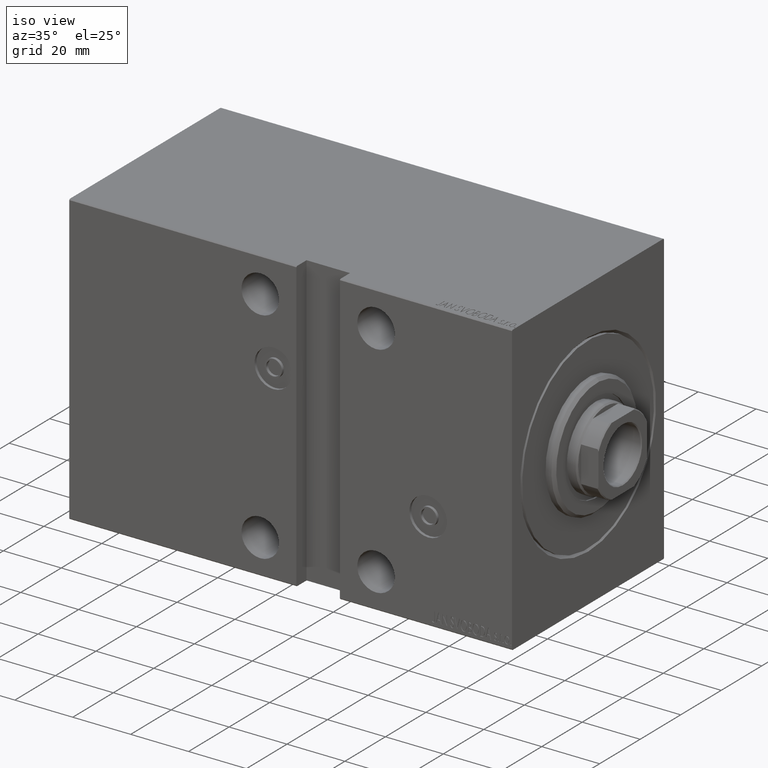
[diagram: clean part render]
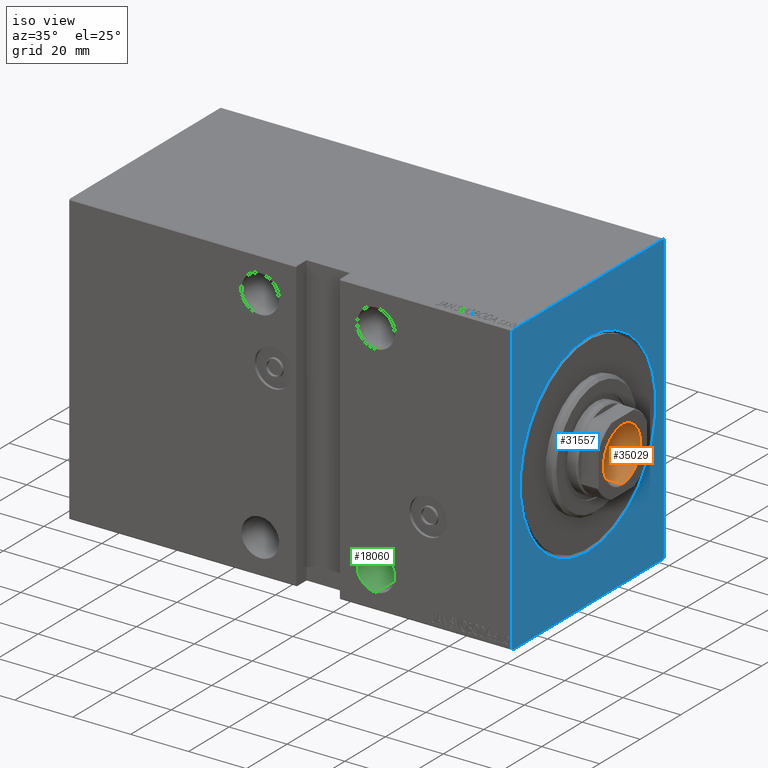
[diagram: same view with three faces highlighted in distinct colors, each labeled with its STEP entity id]
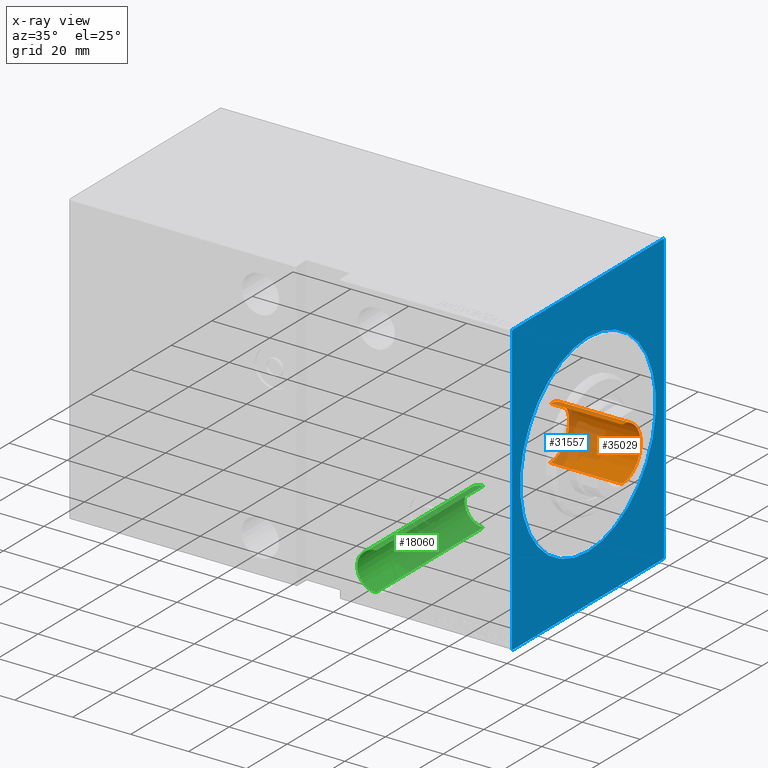
[diagram: x-ray of the same camera — body ghosted, the three highlighted faces saturated]
A machine part, iso view with three faces highlighted in distinct colors.
The next image is the same camera in x-ray (body ghosted, the three faces saturated) — at least one of them is partly hidden behind the body in this view.
Their STEP definitions:

[orange] entity #35029 — the highlighted cylindrical surface (edge-blend (fillet) strip) has radius 9.25 mm, axis along (1, 0, -0).
#1269 = CARTESIAN_POINT ( 'NONE',  ( -9.249999999999994671, 1.132798289211300909E-15, 150.7000000000000171 ) ) ;
#3000 = FACE_OUTER_BOUND ( 'NONE', #33826, .T. ) ;
#3438 = CYLINDRICAL_SURFACE ( 'NONE', #35441, 9.249999999999994671 ) ;
#4849 = AXIS2_PLACEMENT_3D ( 'NONE', #35868, #5553, #22600 ) ;
#5279 = VERTEX_POINT ( 'NONE', #24917 ) ;
#5553 = DIRECTION ( 'NONE',  ( -0.000000000000000000, -0.000000000000000000, 1.000000000000000000 ) ) ;
#5669 = DIRECTION ( 'NONE',  ( -0.000000000000000000, -0.000000000000000000, 1.000000000000000000 ) ) ;
#6810 = VECTOR ( 'NONE', #5669, 1000.000000000000000 ) ;
#7698 = CIRCLE ( 'NONE', #4849, 9.249999999999994671 ) ;
#7887 = VERTEX_POINT ( 'NONE', #1269 ) ;
#8370 = CARTESIAN_POINT ( 'NONE',  ( 9.249999999999994671, 0.000000000000000000, 126.0000000000000284 ) ) ;
#12989 = LINE ( 'NONE', #22499, #6810 ) ;
#13473 = CIRCLE ( 'NONE', #41708, 9.249999999999994671 ) ;
#15137 = ORIENTED_EDGE ( 'NONE', *, *, #19846, .F. ) ;
#16558 = VECTOR ( 'NONE', #28609, 1000.000000000000000 ) ;
#17172 = DIRECTION ( 'NONE',  ( 1.000000000000000000, 0.000000000000000000, 0.000000000000000000 ) ) ;
#18419 = ORIENTED_EDGE ( 'NONE', *, *, #29995, .T. ) ;
#19846 = EDGE_CURVE ( 'NONE', #33677, #7887, #12989, .T. ) ;
#22499 = CARTESIAN_POINT ( 'NONE',  ( -9.249999999999994671, 1.132798289211300909E-15, 151.0000000000000284 ) ) ;
#22600 = DIRECTION ( 'NONE',  ( 1.000000000000000000, 0.000000000000000000, 0.000000000000000000 ) ) ;
#23298 = ORIENTED_EDGE ( 'NONE', *, *, #27259, .F. ) ;
#24868 = CARTESIAN_POINT ( 'NONE',  ( 9.249999999999994671, 0.000000000000000000, 151.0000000000000284 ) ) ;
#24917 = CARTESIAN_POINT ( 'NONE',  ( 9.249999999999994671, 0.000000000000000000, 150.7000000000000171 ) ) ;
#25655 = DIRECTION ( 'NONE',  ( 1.000000000000000000, 0.000000000000000000, 0.000000000000000000 ) ) ;
#27259 = EDGE_CURVE ( 'NONE', #43307, #33677, #7698, .T. ) ;
#28160 = CARTESIAN_POINT ( 'NONE',  ( -9.249999999999994671, 1.132798289211300909E-15, 126.0000000000000284 ) ) ;
#28609 = DIRECTION ( 'NONE',  ( -0.000000000000000000, -0.000000000000000000, 1.000000000000000000 ) ) ;
#29995 = EDGE_CURVE ( 'NONE', #5279, #7887, #13473, .T. ) ;
#30005 = CARTESIAN_POINT ( 'NONE',  ( 0.000000000000000000, 0.000000000000000000, 151.0000000000000284 ) ) ;
#32307 = CARTESIAN_POINT ( 'NONE',  ( 0.000000000000000000, 0.000000000000000000, 150.7000000000000171 ) ) ;
#33677 = VERTEX_POINT ( 'NONE', #28160 ) ;
#33826 = EDGE_LOOP ( 'NONE', ( #15137, #23298, #37102, #18419 ) ) ;
#35029 = ADVANCED_FACE ( 'NONE', ( #3000 ), #3438, .F. ) ;
#35441 = AXIS2_PLACEMENT_3D ( 'NONE', #30005, #40619, #17172 ) ;
#35600 = DIRECTION ( 'NONE',  ( 0.000000000000000000, 0.000000000000000000, 1.000000000000000000 ) ) ;
#35868 = CARTESIAN_POINT ( 'NONE',  ( 0.000000000000000000, 0.000000000000000000, 126.0000000000000284 ) ) ;
#37102 = ORIENTED_EDGE ( 'NONE', *, *, #40261, .T. ) ;
#40261 = EDGE_CURVE ( 'NONE', #43307, #5279, #41462, .T. ) ;
#40619 = DIRECTION ( 'NONE',  ( -0.000000000000000000, -0.000000000000000000, 1.000000000000000000 ) ) ;
#41462 = LINE ( 'NONE', #24868, #16558 ) ;
#41708 = AXIS2_PLACEMENT_3D ( 'NONE', #32307, #35600, #25655 ) ;
#43307 = VERTEX_POINT ( 'NONE', #8370 ) ;

[blue] entity #31557 — the highlighted planar face has unit normal (-1, -0, 0).
#115 = VECTOR ( 'NONE', #5497, 1000.000000000000000 ) ;
#655 = VERTEX_POINT ( 'NONE', #14136 ) ;
#1681 = AXIS2_PLACEMENT_3D ( 'NONE', #8787, #32696, #9685 ) ;
#2041 = VERTEX_POINT ( 'NONE', #42908 ) ;
#2124 = DIRECTION ( 'NONE',  ( 1.000000000000000000, 0.000000000000000000, 0.000000000000000000 ) ) ;
#2883 = AXIS2_PLACEMENT_3D ( 'NONE', #20406, #19959, #23080 ) ;
#2971 = EDGE_LOOP ( 'NONE', ( #18713, #43475 ) ) ;
#3244 = VECTOR ( 'NONE', #26841, 1000.000000000000000 ) ;
#4129 = VERTEX_POINT ( 'NONE', #33573 ) ;
#5114 = ORIENTED_EDGE ( 'NONE', *, *, #20670, .T. ) ;
#5449 = DIRECTION ( 'NONE',  ( 0.000000000000000000, 0.000000000000000000, -1.000000000000000000 ) ) ;
#5497 = DIRECTION ( 'NONE',  ( 0.000000000000000000, -1.387778780781445676E-16, 1.000000000000000000 ) ) ;
#5823 = CARTESIAN_POINT ( 'NONE',  ( 0.000000000000000000, 37.50000000000000711, 49.70000000000003837 ) ) ;
#6157 = VERTEX_POINT ( 'NONE', #34275 ) ;
#6330 = VECTOR ( 'NONE', #16190, 1000.000000000000000 ) ;
#8339 = AXIS2_PLACEMENT_3D ( 'NONE', #35763, #2124, #5449 ) ;
#8445 = CARTESIAN_POINT ( 'NONE',  ( 0.000000000000000000, 37.50000000000000711, 50.00000000000000000 ) ) ;
#8461 = CARTESIAN_POINT ( 'NONE',  ( 0.000000000000000000, -37.19999999999996732, -50.00000000000000000 ) ) ;
#8787 = CARTESIAN_POINT ( 'NONE',  ( 0.000000000000000000, 0.000000000000000000, 0.000000000000000000 ) ) ;
#8966 = EDGE_CURVE ( 'NONE', #25359, #6157, #27142, .T. ) ;
#9685 = DIRECTION ( 'NONE',  ( 0.000000000000000000, 0.000000000000000000, -1.000000000000000000 ) ) ;
#9718 = CARTESIAN_POINT ( 'NONE',  ( 0.000000000000000000, 37.50000000000002132, -50.00000000000000000 ) ) ;
#10135 = CARTESIAN_POINT ( 'NONE',  ( 0.000000000000000000, 37.20000000000000995, 50.00000000000000000 ) ) ;
#11441 = VECTOR ( 'NONE', #25216, 1000.000000000000000 ) ;
#12883 = ORIENTED_EDGE ( 'NONE', *, *, #31328, .T. ) ;
#13791 = PLANE ( 'NONE',  #2883 ) ;
#13960 = EDGE_CURVE ( 'NONE', #33314, #4129, #30369, .T. ) ;
#14136 = CARTESIAN_POINT ( 'NONE',  ( 0.000000000000000000, 37.20000000000000995, 50.00000000000000000 ) ) ;
#16190 = DIRECTION ( 'NONE',  ( 0.000000000000000000, -1.000000000000000000, 0.000000000000000000 ) ) ;
#16222 = CARTESIAN_POINT ( 'NONE',  ( 0.000000000000000000, 0.000000000000000000, 33.50000000000000000 ) ) ;
#16814 = VERTEX_POINT ( 'NONE', #5823 ) ;
#18713 = ORIENTED_EDGE ( 'NONE', *, *, #8966, .T. ) ;
#18839 = VECTOR ( 'NONE', #42463, 1000.000000000000114 ) ;
#19005 = VERTEX_POINT ( 'NONE', #33536 ) ;
#19122 = VECTOR ( 'NONE', #20953, 999.9999999999998863 ) ;
#19959 = DIRECTION ( 'NONE',  ( 1.000000000000000000, 0.000000000000000000, 0.000000000000000000 ) ) ;
#20406 = CARTESIAN_POINT ( 'NONE',  ( 0.000000000000000000, 0.000000000000000000, 0.000000000000000000 ) ) ;
#20670 = EDGE_CURVE ( 'NONE', #2041, #19005, #32080, .T. ) ;
#20953 = DIRECTION ( 'NONE',  ( -0.000000000000000000, 0.7071067811865802133, -0.7071067811865149322 ) ) ;
#21425 = ORIENTED_EDGE ( 'NONE', *, *, #38165, .F. ) ;
#22325 = LINE ( 'NONE', #31425, #11441 ) ;
#23080 = DIRECTION ( 'NONE',  ( 0.000000000000000000, 0.000000000000000000, -1.000000000000000000 ) ) ;
#23144 = CARTESIAN_POINT ( 'NONE',  ( 0.000000000000000000, 37.50000000000002132, -49.69999999999998153 ) ) ;
#23430 = LINE ( 'NONE', #9718, #115 ) ;
#23641 = EDGE_CURVE ( 'NONE', #38054, #4129, #36846, .T. ) ;
#23740 = CARTESIAN_POINT ( 'NONE',  ( 0.000000000000000000, -37.49999999999999289, -50.00000000000000000 ) ) ;
#24115 = EDGE_CURVE ( 'NONE', #6157, #25359, #24618, .T. ) ;
#24618 = CIRCLE ( 'NONE', #8339, 33.50000000000000000 ) ;
#25216 = DIRECTION ( 'NONE',  ( 0.000000000000000000, 0.000000000000000000, -1.000000000000000000 ) ) ;
#25359 = VERTEX_POINT ( 'NONE', #16222 ) ;
#26306 = VERTEX_POINT ( 'NONE', #27053 ) ;
#26592 = ORIENTED_EDGE ( 'NONE', *, *, #29143, .F. ) ;
#26841 = DIRECTION ( 'NONE',  ( 0.000000000000000000, 1.000000000000000000, 0.000000000000000000 ) ) ;
#27053 = CARTESIAN_POINT ( 'NONE',  ( 0.000000000000000000, -37.49999999999999289, -49.69999999999998153 ) ) ;
#27142 = CIRCLE ( 'NONE', #1681, 33.50000000000000000 ) ;
#28161 = VECTOR ( 'NONE', #43050, 1000.000000000000114 ) ;
#28386 = LINE ( 'NONE', #8461, #43817 ) ;
#28626 = CARTESIAN_POINT ( 'NONE',  ( 0.000000000000000000, -37.19999999999996732, -50.00000000000000000 ) ) ;
#29143 = EDGE_CURVE ( 'NONE', #655, #19005, #42712, .T. ) ;
#29661 = EDGE_CURVE ( 'NONE', #33314, #26306, #28386, .T. ) ;
#30369 = LINE ( 'NONE', #23740, #3244 ) ;
#31328 = EDGE_CURVE ( 'NONE', #655, #16814, #37341, .T. ) ;
#31425 = CARTESIAN_POINT ( 'NONE',  ( 0.000000000000000000, -37.49999999999999289, 50.00000000000000000 ) ) ;
#31557 = ADVANCED_FACE ( 'NONE', ( #32440, #36785 ), #13791, .F. ) ;
#31650 = CARTESIAN_POINT ( 'NONE',  ( 0.000000000000000000, 37.50000000000002132, -49.69999999999998153 ) ) ;
#32080 = LINE ( 'NONE', #39147, #18839 ) ;
#32440 = FACE_BOUND ( 'NONE', #2971, .T. ) ;
#32696 = DIRECTION ( 'NONE',  ( 1.000000000000000000, 0.000000000000000000, 0.000000000000000000 ) ) ;
#33314 = VERTEX_POINT ( 'NONE', #28626 ) ;
#33536 = CARTESIAN_POINT ( 'NONE',  ( 0.000000000000000000, -37.19999999999996732, 50.00000000000000000 ) ) ;
#33573 = CARTESIAN_POINT ( 'NONE',  ( 0.000000000000000000, 37.19999999999999574, -50.00000000000000000 ) ) ;
#34275 = CARTESIAN_POINT ( 'NONE',  ( 0.000000000000000000, 4.102566777143633774E-15, -33.50000000000000000 ) ) ;
#35393 = ORIENTED_EDGE ( 'NONE', *, *, #13960, .F. ) ;
#35763 = CARTESIAN_POINT ( 'NONE',  ( 0.000000000000000000, 0.000000000000000000, 0.000000000000000000 ) ) ;
#35886 = DIRECTION ( 'NONE',  ( -0.000000000000000000, -0.7071067811865474617, 0.7071067811865474617 ) ) ;
#36785 = FACE_OUTER_BOUND ( 'NONE', #40328, .T. ) ;
#36846 = LINE ( 'NONE', #23144, #28161 ) ;
#37341 = LINE ( 'NONE', #10135, #19122 ) ;
#38054 = VERTEX_POINT ( 'NONE', #31650 ) ;
#38057 = EDGE_CURVE ( 'NONE', #2041, #26306, #22325, .T. ) ;
#38165 = EDGE_CURVE ( 'NONE', #38054, #16814, #23430, .T. ) ;
#39147 = CARTESIAN_POINT ( 'NONE',  ( 0.000000000000000000, -37.49999999999999289, 49.69999999999998153 ) ) ;
#39494 = ORIENTED_EDGE ( 'NONE', *, *, #38057, .F. ) ;
#40328 = EDGE_LOOP ( 'NONE', ( #26592, #12883, #21425, #43177, #35393, #42824, #39494, #5114 ) ) ;
#42463 = DIRECTION ( 'NONE',  ( -0.000000000000000000, 0.7071067811865474617, 0.7071067811865474617 ) ) ;
#42712 = LINE ( 'NONE', #8445, #6330 ) ;
#42824 = ORIENTED_EDGE ( 'NONE', *, *, #29661, .T. ) ;
#42908 = CARTESIAN_POINT ( 'NONE',  ( 0.000000000000000000, -37.49999999999999289, 49.69999999999998153 ) ) ;
#43050 = DIRECTION ( 'NONE',  ( 0.000000000000000000, -0.7071067811865474617, -0.7071067811865474617 ) ) ;
#43177 = ORIENTED_EDGE ( 'NONE', *, *, #23641, .T. ) ;
#43475 = ORIENTED_EDGE ( 'NONE', *, *, #24115, .T. ) ;
#43817 = VECTOR ( 'NONE', #35886, 1000.000000000000114 ) ;

[green] entity #18060 — the highlighted cylindrical surface (edge-blend (fillet) strip) has radius 6.5 mm, axis along (0, -1, -0).
#590 = CARTESIAN_POINT ( 'NONE',  ( 47.00000000000000000, 37.50000000000004263, -44.49999999999999289 ) ) ;
#3259 = LINE ( 'NONE', #10150, #19882 ) ;
#3379 = DIRECTION ( 'NONE',  ( -0.000000000000000000, 1.000000000000000000, -0.000000000000000000 ) ) ;
#3598 = DIRECTION ( 'NONE',  ( 0.000000000000000000, 0.000000000000000000, -1.000000000000000000 ) ) ;
#5226 = VERTEX_POINT ( 'NONE', #28032 ) ;
#6584 = DIRECTION ( 'NONE',  ( -0.000000000000000000, 1.000000000000000000, -0.000000000000000000 ) ) ;
#6756 = DIRECTION ( 'NONE',  ( -0.000000000000000000, 1.000000000000000000, -0.000000000000000000 ) ) ;
#6803 = DIRECTION ( 'NONE',  ( -0.000000000000000000, 1.000000000000000000, -0.000000000000000000 ) ) ;
#6808 = CARTESIAN_POINT ( 'NONE',  ( 47.00000000000000000, 37.50000000000004263, -37.99999999999999289 ) ) ;
#7252 = DIRECTION ( 'NONE',  ( 0.000000000000000000, 0.000000000000000000, 1.000000000000000000 ) ) ;
#9544 = CIRCLE ( 'NONE', #15197, 6.499999999999999112 ) ;
#9932 = DIRECTION ( 'NONE',  ( 0.000000000000000000, 1.000000000000000000, 0.000000000000000000 ) ) ;
#10150 = CARTESIAN_POINT ( 'NONE',  ( 47.00000000000000000, -37.50000000000004974, -31.49999999999999289 ) ) ;
#11908 = ORIENTED_EDGE ( 'NONE', *, *, #12878, .F. ) ;
#12878 = EDGE_CURVE ( 'NONE', #5226, #41515, #17349, .T. ) ;
#12961 = VERTEX_POINT ( 'NONE', #14444 ) ;
#13253 = AXIS2_PLACEMENT_3D ( 'NONE', #34468, #6584, #37137 ) ;
#14444 = CARTESIAN_POINT ( 'NONE',  ( 47.00000000000000000, 37.50000000000004263, -31.49999999999999289 ) ) ;
#15197 = AXIS2_PLACEMENT_3D ( 'NONE', #6808, #9932, #7252 ) ;
#15976 = EDGE_LOOP ( 'NONE', ( #22070, #11908, #26604, #24008 ) ) ;
#16828 = CARTESIAN_POINT ( 'NONE',  ( 47.00000000000000000, -15.49999999999999289, -44.49999999999999289 ) ) ;
#17349 = CIRCLE ( 'NONE', #18072, 6.499999999999999112 ) ;
#18060 = ADVANCED_FACE ( 'NONE', ( #23643 ), #41109, .F. ) ;
#18072 = AXIS2_PLACEMENT_3D ( 'NONE', #30167, #3379, #3598 ) ;
#19882 = VECTOR ( 'NONE', #6803, 1000.000000000000000 ) ;
#22070 = ORIENTED_EDGE ( 'NONE', *, *, #27725, .F. ) ;
#22627 = VERTEX_POINT ( 'NONE', #590 ) ;
#23643 = FACE_OUTER_BOUND ( 'NONE', #15976, .T. ) ;
#24008 = ORIENTED_EDGE ( 'NONE', *, *, #39886, .T. ) ;
#26604 = ORIENTED_EDGE ( 'NONE', *, *, #34047, .T. ) ;
#26915 = LINE ( 'NONE', #37079, #38815 ) ;
#27725 = EDGE_CURVE ( 'NONE', #41515, #22627, #26915, .T. ) ;
#28032 = CARTESIAN_POINT ( 'NONE',  ( 47.00000000000000000, -15.49999999999999289, -31.49999999999999289 ) ) ;
#30167 = CARTESIAN_POINT ( 'NONE',  ( 47.00000000000000000, -15.49999999999999289, -37.99999999999999289 ) ) ;
#34047 = EDGE_CURVE ( 'NONE', #5226, #12961, #3259, .T. ) ;
#34468 = CARTESIAN_POINT ( 'NONE',  ( 47.00000000000000000, -37.50000000000004974, -37.99999999999999289 ) ) ;
#37079 = CARTESIAN_POINT ( 'NONE',  ( 47.00000000000000000, -37.50000000000004974, -44.49999999999999289 ) ) ;
#37137 = DIRECTION ( 'NONE',  ( 0.000000000000000000, 0.000000000000000000, 1.000000000000000000 ) ) ;
#38815 = VECTOR ( 'NONE', #6756, 1000.000000000000000 ) ;
#39886 = EDGE_CURVE ( 'NONE', #12961, #22627, #9544, .T. ) ;
#41109 = CYLINDRICAL_SURFACE ( 'NONE', #13253, 6.499999999999999112 ) ;
#41515 = VERTEX_POINT ( 'NONE', #16828 ) ;